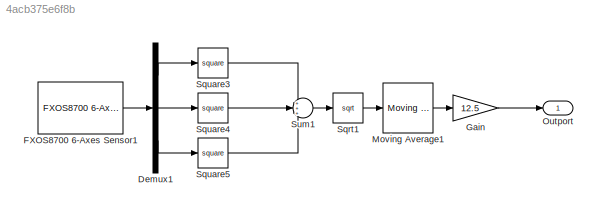
MODEL slx_4acb375e6f8b
KIND model
CONFIG AbsTol = auto
CONFIG EnableMultiTasking = on
CONFIG FixedStep = 1e-3
CONFIG MaxStep = auto
CONFIG MinStep = auto
CONFIG RelTol = 1e-3
CONFIG SampleTimeConstraint = Unconstrained
CONFIG SolverName = FixedStepAuto
CONFIG StartTime = 0.0
CONFIG StopTime = 10.0
BLOCK [Demux] Demux1
  Outputs = 3
BLOCK [Reference] FXOS8700 6-Axes Sensor1  REF=frdmk64flib/FXOS8700 6-Axes Sensor
  SourceBlock = frdmk64flib/FXOS8700 6-Axes Sensor
  SourceType = freedomk64f.fxos8700
BLOCK [Gain] Gain
  Gain = 12.5
BLOCK [Reference] Moving Average1  REF=dspstat3/Moving
Average
  SourceBlock = dspstat3/Moving\nAverage
  SourceType = dsp.simulink.MovingAverage
BLOCK [Outport] Outport
BLOCK [Sqrt] Sqrt1
BLOCK [Math] Square3
  Operator = square
BLOCK [Math] Square4
  Operator = square
BLOCK [Math] Square5
  Operator = square
BLOCK [Sum] Sum1
  Inputs = +++
LINE Demux1:1 -> Square3:1
LINE Demux1:2 -> Square4:1
LINE Demux1:3 -> Square5:1
LINE FXOS8700 6-Axes Sensor1:1 -> Demux1:1
LINE Gain:1 -> Outport:1
LINE Moving Average1:1 -> Gain:1
LINE Sqrt1:1 -> Moving Average1:1
LINE Square3:1 -> Sum1:1
LINE Square4:1 -> Sum1:2
LINE Square5:1 -> Sum1:3
LINE Sum1:1 -> Sqrt1:1
